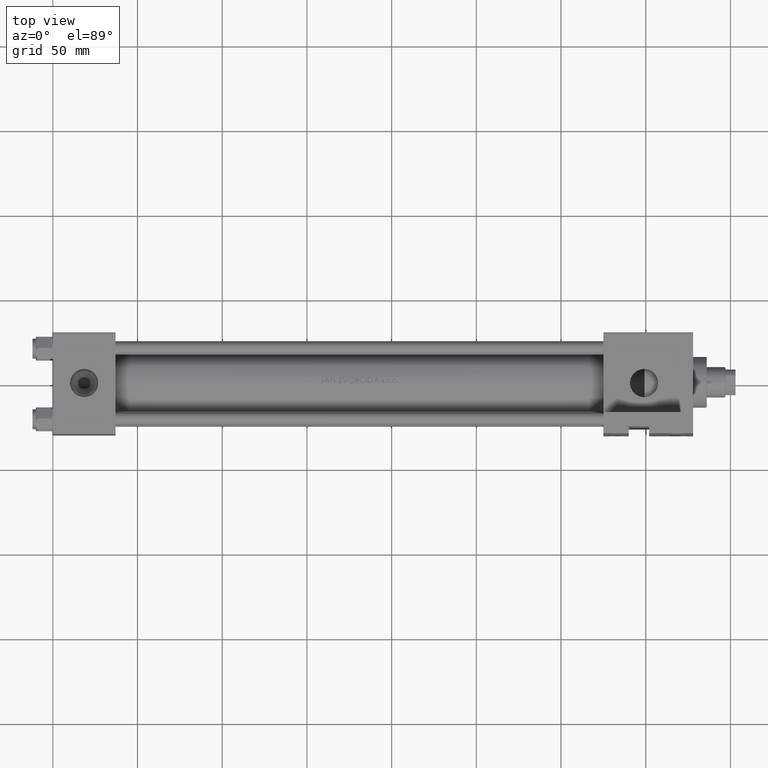
[diagram: clean part render]
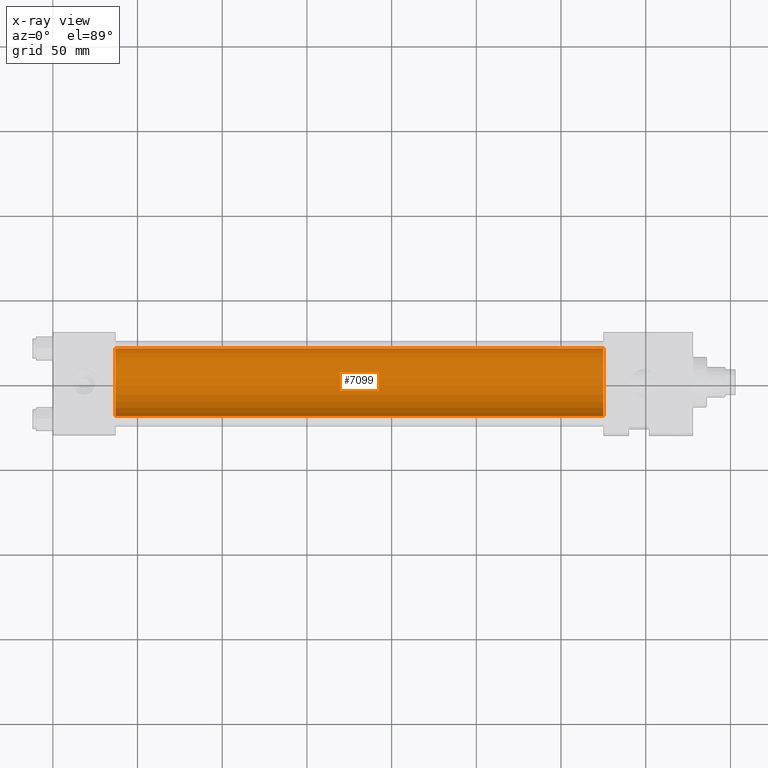
[diagram: x-ray — body ghosted, one internal face saturated and labeled with its STEP entity id]
A machine part, top view, then the same camera in x-ray: the body is ghosted and one INTERNAL B-rep face — a face not visible from any outside direction — is saturated and labeled: STEP entity #7099.
In plain terms, the highlighted cylindrical surface (edge-blend (fillet) strip) has radius 20 mm, axis along (-1, -0, 0).
Its self-contained STEP definition (entity closure, byte-faithful):
#393 = DIRECTION ( 'NONE',  ( 0.000000000000000000, 0.000000000000000000, -1.000000000000000000 ) ) ;
#1131 = ORIENTED_EDGE ( 'NONE', *, *, #9165, .T. ) ;
#4423 = DIRECTION ( 'NONE',  ( 1.000000000000000000, 0.000000000000000000, 0.000000000000000000 ) ) ;
#4643 = ORIENTED_EDGE ( 'NONE', *, *, #6555, .T. ) ;
#4806 = DIRECTION ( 'NONE',  ( 1.000000000000000000, 0.000000000000000000, 0.000000000000000000 ) ) ;
#6555 = EDGE_CURVE ( 'NONE', #19954, #35731, #17334, .T. ) ;
#7099 = ADVANCED_FACE ( 'NONE', ( #18227 ), #48279, .F. ) ;
#7793 = AXIS2_PLACEMENT_3D ( 'NONE', #14532, #44820, #45065 ) ;
#8596 = AXIS2_PLACEMENT_3D ( 'NONE', #41884, #4423, #34963 ) ;
#9165 = EDGE_CURVE ( 'NONE', #35731, #47267, #33617, .T. ) ;
#10694 = CARTESIAN_POINT ( 'NONE',  ( 324.9999999999999432, 2.326828918379970970E-15, -19.00000000000000000 ) ) ;
#12693 = AXIS2_PLACEMENT_3D ( 'NONE', #16392, #4806, #393 ) ;
#13493 = LINE ( 'NONE', #24816, #45145 ) ;
#13970 = DIRECTION ( 'NONE',  ( -1.000000000000000000, -0.000000000000000000, -0.000000000000000000 ) ) ;
#14532 = CARTESIAN_POINT ( 'NONE',  ( 324.9999999999999432, -1.224646799147354686E-16, 1.000000000000000888 ) ) ;
#16392 = CARTESIAN_POINT ( 'NONE',  ( 37.00000000000000000, -1.224646799147354686E-16, 1.000000000000000888 ) ) ;
#17334 = CIRCLE ( 'NONE', #8596, 20.00000000000000000 ) ;
#18227 = FACE_OUTER_BOUND ( 'NONE', #42577, .T. ) ;
#19954 = VERTEX_POINT ( 'NONE', #10694 ) ;
#21278 = VECTOR ( 'NONE', #44967, 1000.000000000000000 ) ;
#22058 = ORIENTED_EDGE ( 'NONE', *, *, #31446, .F. ) ;
#23246 = CARTESIAN_POINT ( 'NONE',  ( 324.9999999999999432, -1.224646799147354686E-16, 21.00000000000000000 ) ) ;
#24469 = CIRCLE ( 'NONE', #12693, 20.00000000000000000 ) ;
#24816 = CARTESIAN_POINT ( 'NONE',  ( 324.9999999999999432, 2.326828918379970970E-15, -19.00000000000000000 ) ) ;
#26851 = VERTEX_POINT ( 'NONE', #39216 ) ;
#27694 = EDGE_CURVE ( 'NONE', #26851, #47267, #24469, .T. ) ;
#31446 = EDGE_CURVE ( 'NONE', #19954, #26851, #13493, .T. ) ;
#33381 = CARTESIAN_POINT ( 'NONE',  ( 324.9999999999999432, -1.224646799147354686E-16, 21.00000000000000000 ) ) ;
#33617 = LINE ( 'NONE', #33381, #21278 ) ;
#34963 = DIRECTION ( 'NONE',  ( 0.000000000000000000, 0.000000000000000000, -1.000000000000000000 ) ) ;
#35731 = VERTEX_POINT ( 'NONE', #23246 ) ;
#36987 = CARTESIAN_POINT ( 'NONE',  ( 37.00000000000000000, -1.224646799147354686E-16, 21.00000000000000000 ) ) ;
#37846 = ORIENTED_EDGE ( 'NONE', *, *, #27694, .F. ) ;
#39216 = CARTESIAN_POINT ( 'NONE',  ( 37.00000000000000000, 2.326828918379970970E-15, -19.00000000000000000 ) ) ;
#41884 = CARTESIAN_POINT ( 'NONE',  ( 324.9999999999999432, -1.224646799147354686E-16, 1.000000000000000888 ) ) ;
#42577 = EDGE_LOOP ( 'NONE', ( #22058, #4643, #1131, #37846 ) ) ;
#44820 = DIRECTION ( 'NONE',  ( -1.000000000000000000, -0.000000000000000000, -0.000000000000000000 ) ) ;
#44967 = DIRECTION ( 'NONE',  ( -1.000000000000000000, -0.000000000000000000, -0.000000000000000000 ) ) ;
#45065 = DIRECTION ( 'NONE',  ( 0.000000000000000000, 0.000000000000000000, 1.000000000000000000 ) ) ;
#45145 = VECTOR ( 'NONE', #13970, 1000.000000000000000 ) ;
#47267 = VERTEX_POINT ( 'NONE', #36987 ) ;
#48279 = CYLINDRICAL_SURFACE ( 'NONE', #7793, 20.00000000000000000 ) ;